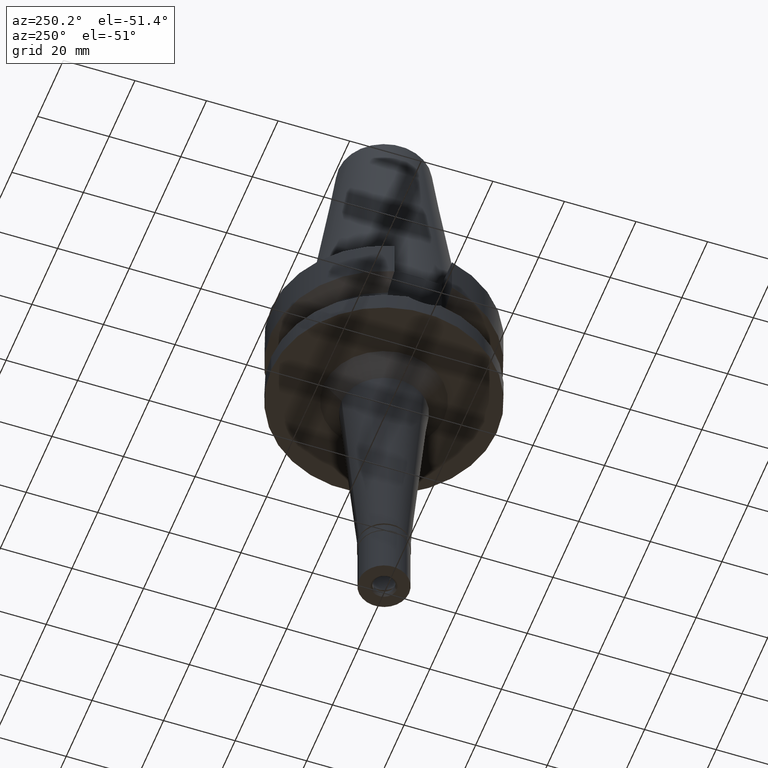
[diagram: clean part render]
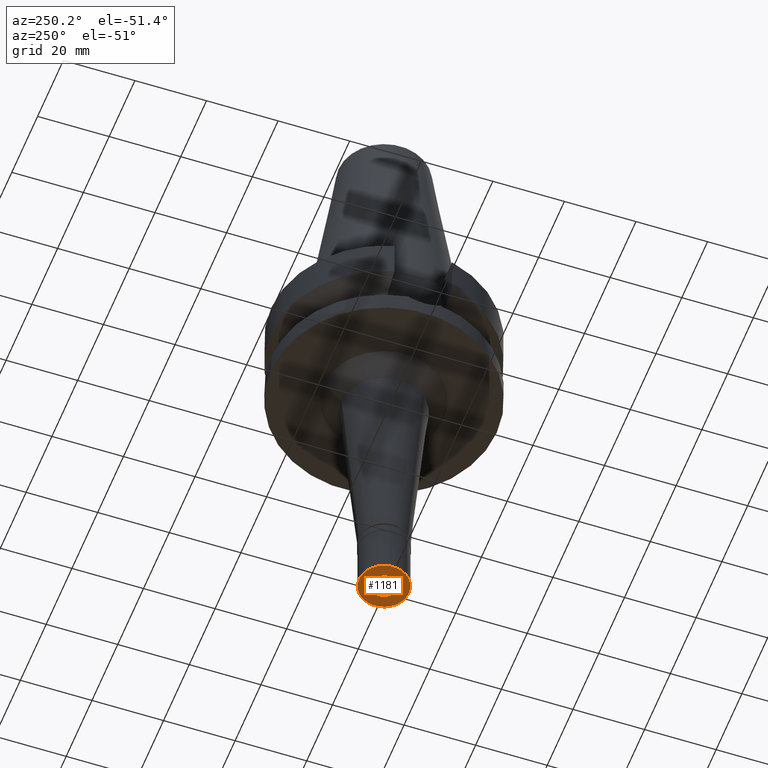
[diagram: same view with one face highlighted and labeled with its STEP entity id]
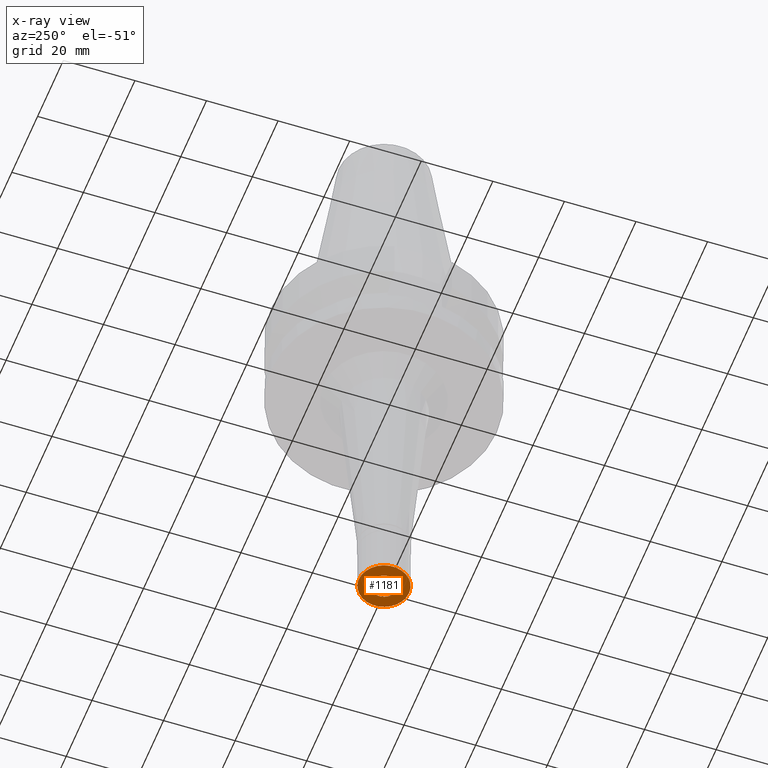
[diagram: x-ray of the same camera — body ghosted, the highlighted face saturated]
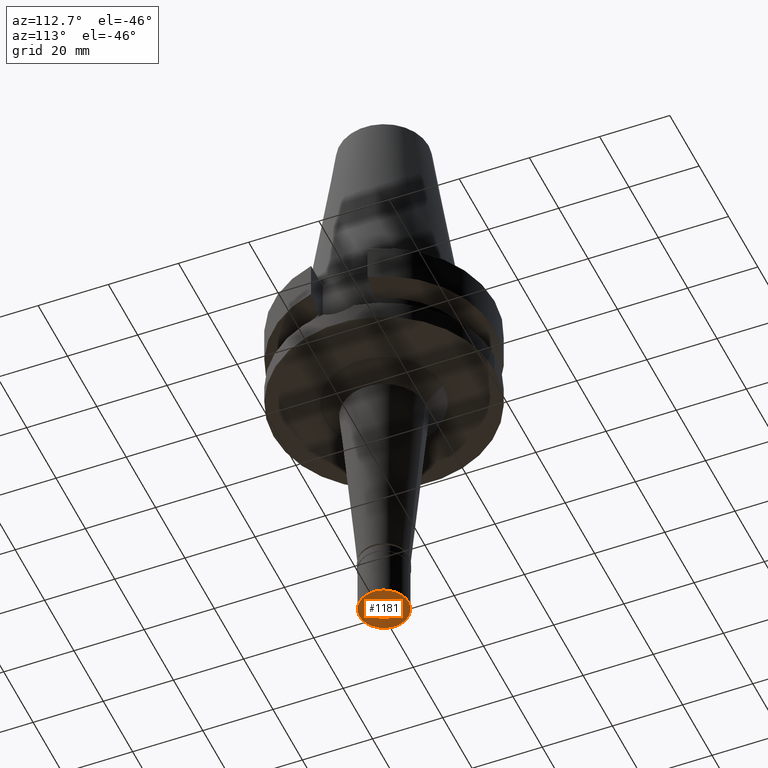
[diagram: same view with one face highlighted and labeled with its STEP entity id]
A machine part, auxiliary view. The second image highlights one B-rep face of the part: STEP entity #1181.
The next image is the same camera in x-ray: the body ghosted, the highlighted face saturated — about 0% of this face is hidden behind the body in this view.
A second angle (auxiliary view) of the same face is appended — the face is thin or edge-on in the first view.
In plain terms, the highlighted planar face has unit normal (0, 0, 1).
Its self-contained STEP definition (entity closure, byte-faithful):
#104 = CARTESIAN_POINT ( 'NONE',  ( 0.0000000000000000000, 0.0000000000000000000, -17.00000000000000000 ) ) ;
#140 = CIRCLE ( 'NONE', #1342, 7.000000000000000000 ) ;
#211 = CARTESIAN_POINT ( 'NONE',  ( 0.0000000000000000000, 0.0000000000000000000, -17.00000000000000000 ) ) ;
#237 = DIRECTION ( 'NONE',  ( 0.0000000000000000000, -1.000000000000000000, 0.0000000000000000000 ) ) ;
#311 = ORIENTED_EDGE ( 'NONE', *, *, #1553, .F. ) ;
#386 = AXIS2_PLACEMENT_3D ( 'NONE', #211, #1125, #237 ) ;
#413 = ORIENTED_EDGE ( 'NONE', *, *, #878, .F. ) ;
#520 = DIRECTION ( 'NONE',  ( 0.0000000000000000000, 1.000000000000000000, 0.0000000000000000000 ) ) ;
#527 = AXIS2_PLACEMENT_3D ( 'NONE', #2897, #2884, #826 ) ;
#584 = FACE_BOUND ( 'NONE', #842, .T. ) ;
#634 = ORIENTED_EDGE ( 'NONE', *, *, #1364, .F. ) ;
#662 = VERTEX_POINT ( 'NONE', #873 ) ;
#826 = DIRECTION ( 'NONE',  ( 0.0000000000000000000, -1.000000000000000000, 0.0000000000000000000 ) ) ;
#842 = EDGE_LOOP ( 'NONE', ( #634, #311 ) ) ;
#873 = CARTESIAN_POINT ( 'NONE',  ( 0.0000000000000000000, 7.000000000000000000, -17.00000000000000000 ) ) ;
#878 = EDGE_CURVE ( 'NONE', #662, #1648, #140, .T. ) ;
#938 = PLANE ( 'NONE',  #1288 ) ;
#1013 = CIRCLE ( 'NONE', #386, 3.550000000000000266 ) ;
#1125 = DIRECTION ( 'NONE',  ( 0.0000000000000000000, 0.0000000000000000000, -1.000000000000000000 ) ) ;
#1132 = CARTESIAN_POINT ( 'NONE',  ( 0.0000000000000000000, 3.550000000000000266, -17.00000000000000000 ) ) ;
#1181 = ADVANCED_FACE ( 'NONE', ( #1710, #584 ), #938, .F. ) ;
#1183 = DIRECTION ( 'NONE',  ( 0.0000000000000000000, 0.0000000000000000000, 1.000000000000000000 ) ) ;
#1215 = CARTESIAN_POINT ( 'NONE',  ( 0.0000000000000000000, -3.550000000000000266, -17.00000000000000000 ) ) ;
#1282 = DIRECTION ( 'NONE',  ( 0.0000000000000000000, 0.0000000000000000000, -1.000000000000000000 ) ) ;
#1288 = AXIS2_PLACEMENT_3D ( 'NONE', #104, #1842, #2171 ) ;
#1290 = AXIS2_PLACEMENT_3D ( 'NONE', #2410, #1282, #1550 ) ;
#1342 = AXIS2_PLACEMENT_3D ( 'NONE', #2555, #1183, #520 ) ;
#1364 = EDGE_CURVE ( 'NONE', #2563, #2717, #2694, .T. ) ;
#1550 = DIRECTION ( 'NONE',  ( 0.0000000000000000000, 1.000000000000000000, 0.0000000000000000000 ) ) ;
#1553 = EDGE_CURVE ( 'NONE', #2717, #2563, #1013, .T. ) ;
#1648 = VERTEX_POINT ( 'NONE', #2050 ) ;
#1710 = FACE_OUTER_BOUND ( 'NONE', #2730, .T. ) ;
#1842 = DIRECTION ( 'NONE',  ( 0.0000000000000000000, 0.0000000000000000000, 1.000000000000000000 ) ) ;
#1916 = EDGE_CURVE ( 'NONE', #1648, #662, #2969, .T. ) ;
#2050 = CARTESIAN_POINT ( 'NONE',  ( 0.0000000000000000000, -7.000000000000000000, -17.00000000000000000 ) ) ;
#2171 = DIRECTION ( 'NONE',  ( 1.000000000000000000, 0.0000000000000000000, 0.0000000000000000000 ) ) ;
#2410 = CARTESIAN_POINT ( 'NONE',  ( 0.0000000000000000000, 0.0000000000000000000, -17.00000000000000000 ) ) ;
#2555 = CARTESIAN_POINT ( 'NONE',  ( 0.0000000000000000000, 0.0000000000000000000, -17.00000000000000000 ) ) ;
#2563 = VERTEX_POINT ( 'NONE', #1132 ) ;
#2694 = CIRCLE ( 'NONE', #1290, 3.550000000000000266 ) ;
#2717 = VERTEX_POINT ( 'NONE', #1215 ) ;
#2730 = EDGE_LOOP ( 'NONE', ( #413, #2812 ) ) ;
#2812 = ORIENTED_EDGE ( 'NONE', *, *, #1916, .F. ) ;
#2884 = DIRECTION ( 'NONE',  ( 0.0000000000000000000, 0.0000000000000000000, 1.000000000000000000 ) ) ;
#2897 = CARTESIAN_POINT ( 'NONE',  ( 0.0000000000000000000, 0.0000000000000000000, -17.00000000000000000 ) ) ;
#2969 = CIRCLE ( 'NONE', #527, 7.000000000000000000 ) ;